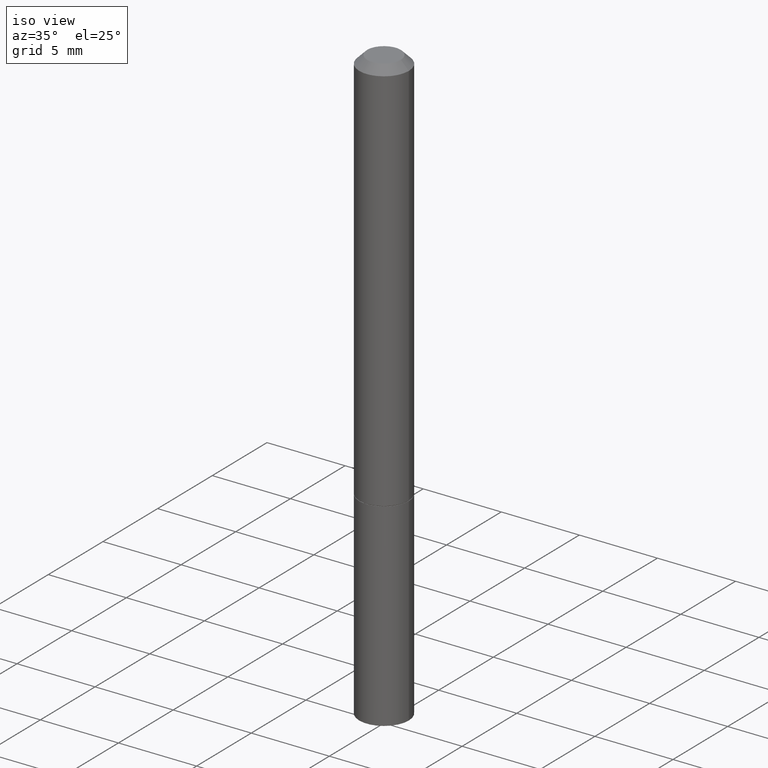
[diagram: clean part render]
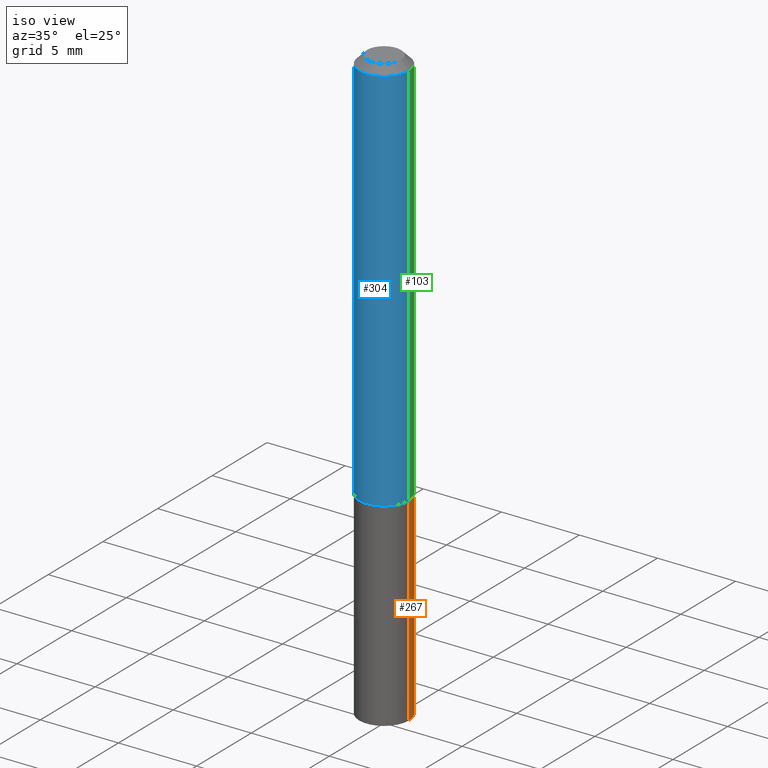
[diagram: same view with three faces highlighted in distinct colors, each labeled with its STEP entity id]
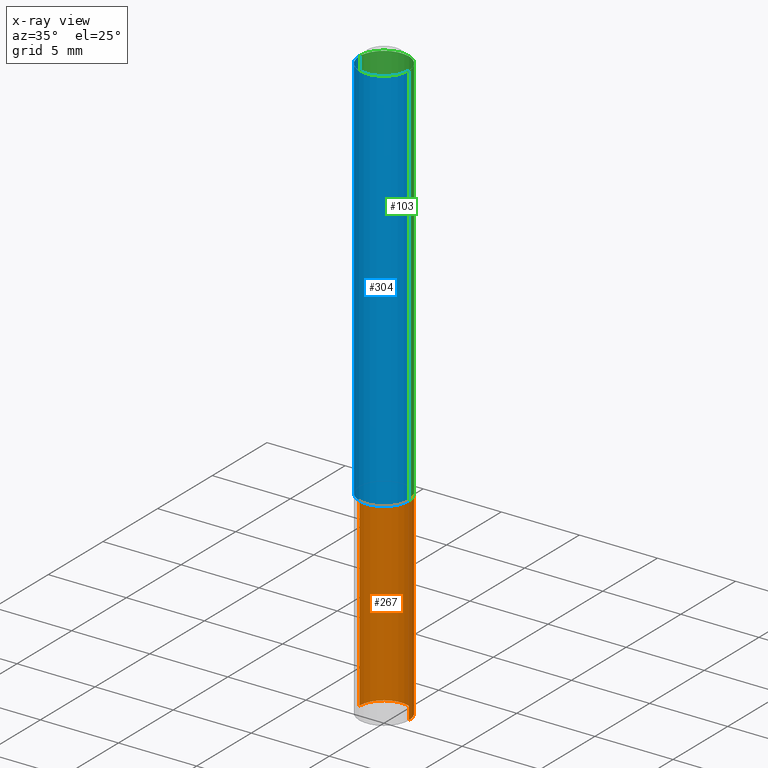
[diagram: x-ray of the same camera — body ghosted, the three highlighted faces saturated]
A machine part, iso view with three faces highlighted in distinct colors.
The next image is the same camera in x-ray (body ghosted, the three faces saturated) — at least one of them is partly hidden behind the body in this view.
Their STEP definitions:

[orange] entity #267 — the highlighted cylindrical surface (edge-blend (fillet) strip) has radius 1.5875 mm, axis along (-0, 0, 1).
#19 = ORIENTED_EDGE ( 'NONE', *, *, #159, .T. ) ;
#24 = VERTEX_POINT ( 'NONE', #155 ) ;
#53 = CIRCLE ( 'NONE', #339, 0.06250000000000001388 ) ;
#54 = CARTESIAN_POINT ( 'NONE',  ( -0.06250000000000001388, 4.440892098500627148E-16, -3.074334431409317165E-30 ) ) ;
#61 = DIRECTION ( 'NONE',  ( 1.000000000000000000, -6.982962677686269077E-15, 0.000000000000000000 ) ) ;
#63 = VECTOR ( 'NONE', #143, 39.37007874015748143 ) ;
#65 = ORIENTED_EDGE ( 'NONE', *, *, #221, .F. ) ;
#68 = EDGE_LOOP ( 'NONE', ( #107, #19, #65, #347 ) ) ;
#69 = AXIS2_PLACEMENT_3D ( 'NONE', #119, #312, #89 ) ;
#86 = CYLINDRICAL_SURFACE ( 'NONE', #279, 0.06250000000000001388 ) ;
#89 = DIRECTION ( 'NONE',  ( 1.000000000000000000, -6.982962677686261189E-15, 0.000000000000000000 ) ) ;
#107 = ORIENTED_EDGE ( 'NONE', *, *, #237, .T. ) ;
#119 = CARTESIAN_POINT ( 'NONE',  ( 3.668203209277704895E-29, -5.237222008264718177E-15, -1.500000000000000222 ) ) ;
#132 = VERTEX_POINT ( 'NONE', #366 ) ;
#138 = VECTOR ( 'NONE', #251, 39.37007874015748143 ) ;
#143 = DIRECTION ( 'NONE',  ( -2.445468806185136877E-29, 3.491481338843145188E-15, 1.000000000000000000 ) ) ;
#151 = CIRCLE ( 'NONE', #69, 0.06250000000000001388 ) ;
#155 = CARTESIAN_POINT ( 'NONE',  ( -0.06250000000000001388, -3.920262463703869855E-15, -1.000000000000000222 ) ) ;
#159 = EDGE_CURVE ( 'NONE', #214, #24, #249, .T. ) ;
#176 = FACE_OUTER_BOUND ( 'NONE', #68, .T. ) ;
#178 = CARTESIAN_POINT ( 'NONE',  ( 0.000000000000000000, 0.000000000000000000, 0.000000000000000000 ) ) ;
#179 = CARTESIAN_POINT ( 'NONE',  ( 0.06250000000000001388, -5.673657175620109846E-15, -1.500000000000000222 ) ) ;
#180 = LINE ( 'NONE', #341, #63 ) ;
#214 = VERTEX_POINT ( 'NONE', #336 ) ;
#221 = EDGE_CURVE ( 'NONE', #132, #24, #53, .T. ) ;
#227 = CARTESIAN_POINT ( 'NONE',  ( 2.445468806185136877E-29, -3.491481338843145977E-15, -1.000000000000000222 ) ) ;
#229 = DIRECTION ( 'NONE',  ( -2.445468806185136597E-29, 3.491481338843145583E-15, 1.000000000000000000 ) ) ;
#237 = EDGE_CURVE ( 'NONE', #269, #214, #151, .T. ) ;
#249 = LINE ( 'NONE', #54, #138 ) ;
#251 = DIRECTION ( 'NONE',  ( -2.445468806185136877E-29, 3.491481338843145188E-15, 1.000000000000000000 ) ) ;
#259 = DIRECTION ( 'NONE',  ( -2.445468806185136597E-29, 3.491481338843145583E-15, 1.000000000000000000 ) ) ;
#267 = ADVANCED_FACE ( 'NONE', ( #176 ), #86, .T. ) ;
#269 = VERTEX_POINT ( 'NONE', #179 ) ;
#279 = AXIS2_PLACEMENT_3D ( 'NONE', #178, #229, #315 ) ;
#312 = DIRECTION ( 'NONE',  ( -2.445468806185136597E-29, 3.491481338843145583E-15, 1.000000000000000000 ) ) ;
#315 = DIRECTION ( 'NONE',  ( 1.000000000000000000, -6.982962677686267499E-15, 4.876176775795935793E-29 ) ) ;
#336 = CARTESIAN_POINT ( 'NONE',  ( -0.06250000000000001388, -3.920262463703869855E-15, -1.500000000000000222 ) ) ;
#339 = AXIS2_PLACEMENT_3D ( 'NONE', #227, #259, #61 ) ;
#341 = CARTESIAN_POINT ( 'NONE',  ( 0.06250000000000001388, -4.364351673553918173E-16, 3.047610484872460571E-30 ) ) ;
#343 = EDGE_CURVE ( 'NONE', #269, #132, #180, .T. ) ;
#347 = ORIENTED_EDGE ( 'NONE', *, *, #343, .F. ) ;
#366 = CARTESIAN_POINT ( 'NONE',  ( 0.06250000000000001388, -3.927916506198537646E-15, -1.000000000000000222 ) ) ;

[blue] entity #304 — the highlighted cylindrical surface (edge-blend (fillet) strip) has radius 1.5875 mm, axis along (-0, 0, 1).
#1 = CYLINDRICAL_SURFACE ( 'NONE', #261, 0.06249999999999991673 ) ;
#9 = FACE_OUTER_BOUND ( 'NONE', #110, .T. ) ;
#20 = CIRCLE ( 'NONE', #363, 0.06249999999999984734 ) ;
#29 = CARTESIAN_POINT ( 'NONE',  ( 0.06249999999999997918, -3.924425024859694639E-15, -0.9990000000000002212 ) ) ;
#38 = EDGE_CURVE ( 'NONE', #161, #192, #328, .T. ) ;
#42 = ORIENTED_EDGE ( 'NONE', *, *, #307, .F. ) ;
#51 = DIRECTION ( 'NONE',  ( -2.445468806185136597E-29, 3.491481338843145583E-15, 1.000000000000000000 ) ) ;
#62 = DIRECTION ( 'NONE',  ( 1.000000000000000000, -6.982962677686266711E-15, 4.876176775795935793E-29 ) ) ;
#73 = CARTESIAN_POINT ( 'NONE',  ( -0.06249999999999984734, 3.666055405785274837E-16, -0.02000000000000005246 ) ) ;
#76 = VECTOR ( 'NONE', #287, 39.37007874015748143 ) ;
#88 = CARTESIAN_POINT ( 'NONE',  ( -0.06249999999999991673, 4.440892098500620245E-16, -3.074334431409311910E-30 ) ) ;
#110 = EDGE_LOOP ( 'NONE', ( #42, #216, #212, #291 ) ) ;
#120 = EDGE_CURVE ( 'NONE', #299, #161, #144, .T. ) ;
#123 = AXIS2_PLACEMENT_3D ( 'NONE', #170, #51, #218 ) ;
#135 = CARTESIAN_POINT ( 'NONE',  ( 0.06249999999999984734, -4.986107516375827389E-16, -0.02000000000000005246 ) ) ;
#144 = CIRCLE ( 'NONE', #123, 0.06249999999999997918 ) ;
#146 = CARTESIAN_POINT ( 'NONE',  ( 4.890937612370285420E-31, -6.982962677686308865E-17, -0.02000000000000005246 ) ) ;
#160 = CARTESIAN_POINT ( 'NONE',  ( 0.06249999999999991673, -4.364351673553910778E-16, 3.047610484872455667E-30 ) ) ;
#161 = VERTEX_POINT ( 'NONE', #29 ) ;
#169 = VECTOR ( 'NONE', #213, 39.37007874015748143 ) ;
#170 = CARTESIAN_POINT ( 'NONE',  ( 2.443023337378951835E-29, -3.487989857504302970E-15, -0.9990000000000002212 ) ) ;
#182 = VERTEX_POINT ( 'NONE', #73 ) ;
#192 = VERTEX_POINT ( 'NONE', #135 ) ;
#212 = ORIENTED_EDGE ( 'NONE', *, *, #38, .T. ) ;
#213 = DIRECTION ( 'NONE',  ( -2.445468806185136877E-29, 3.491481338843145188E-15, 1.000000000000000000 ) ) ;
#216 = ORIENTED_EDGE ( 'NONE', *, *, #120, .T. ) ;
#218 = DIRECTION ( 'NONE',  ( 1.000000000000000000, -6.982962677686265133E-15, 0.000000000000000000 ) ) ;
#231 = CARTESIAN_POINT ( 'NONE',  ( -0.06249999999999997918, -1.334820532290518743E-15, -0.9990000000000002212 ) ) ;
#257 = DIRECTION ( 'NONE',  ( -2.445468806185136597E-29, 3.491481338843145583E-15, 1.000000000000000000 ) ) ;
#261 = AXIS2_PLACEMENT_3D ( 'NONE', #311, #257, #62 ) ;
#284 = DIRECTION ( 'NONE',  ( -2.445468806185136597E-29, 3.491481338843145583E-15, 1.000000000000000000 ) ) ;
#287 = DIRECTION ( 'NONE',  ( -2.445468806185136877E-29, 3.491481338843145188E-15, 1.000000000000000000 ) ) ;
#291 = ORIENTED_EDGE ( 'NONE', *, *, #300, .F. ) ;
#299 = VERTEX_POINT ( 'NONE', #231 ) ;
#300 = EDGE_CURVE ( 'NONE', #182, #192, #20, .T. ) ;
#304 = ADVANCED_FACE ( 'NONE', ( #9 ), #1, .T. ) ;
#307 = EDGE_CURVE ( 'NONE', #299, #182, #344, .T. ) ;
#311 = CARTESIAN_POINT ( 'NONE',  ( 0.000000000000000000, 0.000000000000000000, 0.000000000000000000 ) ) ;
#328 = LINE ( 'NONE', #160, #169 ) ;
#344 = LINE ( 'NONE', #88, #76 ) ;
#345 = DIRECTION ( 'NONE',  ( 1.000000000000000000, -6.982962677686266711E-15, 0.000000000000000000 ) ) ;
#363 = AXIS2_PLACEMENT_3D ( 'NONE', #146, #284, #345 ) ;

[green] entity #103 — the highlighted cylindrical surface (edge-blend (fillet) strip) has radius 1.5875 mm, axis along (-0, 0, 1).
#17 = ORIENTED_EDGE ( 'NONE', *, *, #38, .F. ) ;
#29 = CARTESIAN_POINT ( 'NONE',  ( 0.06249999999999997918, -3.924425024859694639E-15, -0.9990000000000002212 ) ) ;
#37 = CIRCLE ( 'NONE', #187, 0.06249999999999984734 ) ;
#38 = EDGE_CURVE ( 'NONE', #161, #192, #328, .T. ) ;
#41 = AXIS2_PLACEMENT_3D ( 'NONE', #223, #281, #220 ) ;
#49 = CYLINDRICAL_SURFACE ( 'NONE', #41, 0.06249999999999991673 ) ;
#52 = CARTESIAN_POINT ( 'NONE',  ( 4.890937612370285420E-31, -6.982962677686308865E-17, -0.02000000000000005246 ) ) ;
#73 = CARTESIAN_POINT ( 'NONE',  ( -0.06249999999999984734, 3.666055405785274837E-16, -0.02000000000000005246 ) ) ;
#76 = VECTOR ( 'NONE', #287, 39.37007874015748143 ) ;
#80 = FACE_OUTER_BOUND ( 'NONE', #188, .T. ) ;
#84 = CIRCLE ( 'NONE', #309, 0.06249999999999997918 ) ;
#88 = CARTESIAN_POINT ( 'NONE',  ( -0.06249999999999991673, 4.440892098500620245E-16, -3.074334431409311910E-30 ) ) ;
#103 = ADVANCED_FACE ( 'NONE', ( #80 ), #49, .T. ) ;
#121 = DIRECTION ( 'NONE',  ( 1.000000000000000000, -6.982962677686265133E-15, 0.000000000000000000 ) ) ;
#135 = CARTESIAN_POINT ( 'NONE',  ( 0.06249999999999984734, -4.986107516375827389E-16, -0.02000000000000005246 ) ) ;
#160 = CARTESIAN_POINT ( 'NONE',  ( 0.06249999999999991673, -4.364351673553910778E-16, 3.047610484872455667E-30 ) ) ;
#161 = VERTEX_POINT ( 'NONE', #29 ) ;
#166 = DIRECTION ( 'NONE',  ( -2.445468806185136597E-29, 3.491481338843145583E-15, 1.000000000000000000 ) ) ;
#169 = VECTOR ( 'NONE', #213, 39.37007874015748143 ) ;
#174 = EDGE_CURVE ( 'NONE', #192, #182, #37, .T. ) ;
#182 = VERTEX_POINT ( 'NONE', #73 ) ;
#187 = AXIS2_PLACEMENT_3D ( 'NONE', #52, #166, #332 ) ;
#188 = EDGE_LOOP ( 'NONE', ( #333, #206, #266, #17 ) ) ;
#192 = VERTEX_POINT ( 'NONE', #135 ) ;
#206 = ORIENTED_EDGE ( 'NONE', *, *, #307, .T. ) ;
#213 = DIRECTION ( 'NONE',  ( -2.445468806185136877E-29, 3.491481338843145188E-15, 1.000000000000000000 ) ) ;
#220 = DIRECTION ( 'NONE',  ( 1.000000000000000000, -6.982962677686266711E-15, 4.876176775795935793E-29 ) ) ;
#223 = CARTESIAN_POINT ( 'NONE',  ( 0.000000000000000000, 0.000000000000000000, 0.000000000000000000 ) ) ;
#231 = CARTESIAN_POINT ( 'NONE',  ( -0.06249999999999997918, -1.334820532290518743E-15, -0.9990000000000002212 ) ) ;
#255 = DIRECTION ( 'NONE',  ( -2.445468806185136597E-29, 3.491481338843145583E-15, 1.000000000000000000 ) ) ;
#266 = ORIENTED_EDGE ( 'NONE', *, *, #174, .F. ) ;
#281 = DIRECTION ( 'NONE',  ( -2.445468806185136597E-29, 3.491481338843145583E-15, 1.000000000000000000 ) ) ;
#287 = DIRECTION ( 'NONE',  ( -2.445468806185136877E-29, 3.491481338843145188E-15, 1.000000000000000000 ) ) ;
#289 = CARTESIAN_POINT ( 'NONE',  ( 2.443023337378951835E-29, -3.487989857504302970E-15, -0.9990000000000002212 ) ) ;
#299 = VERTEX_POINT ( 'NONE', #231 ) ;
#307 = EDGE_CURVE ( 'NONE', #299, #182, #344, .T. ) ;
#309 = AXIS2_PLACEMENT_3D ( 'NONE', #289, #255, #121 ) ;
#316 = EDGE_CURVE ( 'NONE', #161, #299, #84, .T. ) ;
#328 = LINE ( 'NONE', #160, #169 ) ;
#332 = DIRECTION ( 'NONE',  ( 1.000000000000000000, -6.982962677686266711E-15, 0.000000000000000000 ) ) ;
#333 = ORIENTED_EDGE ( 'NONE', *, *, #316, .T. ) ;
#344 = LINE ( 'NONE', #88, #76 ) ;